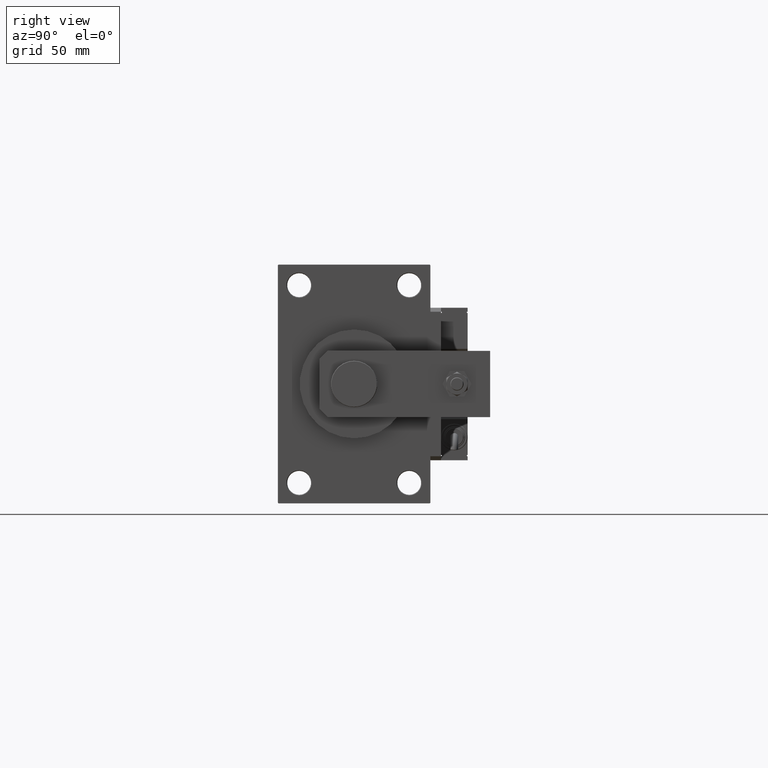
[diagram: clean part render]
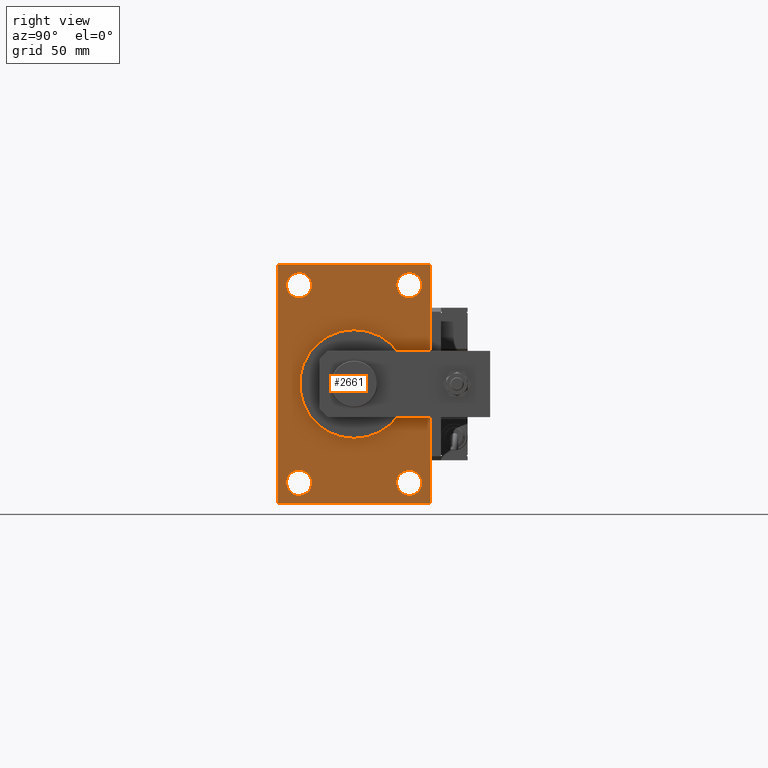
[diagram: same view with one face highlighted and labeled with its STEP entity id]
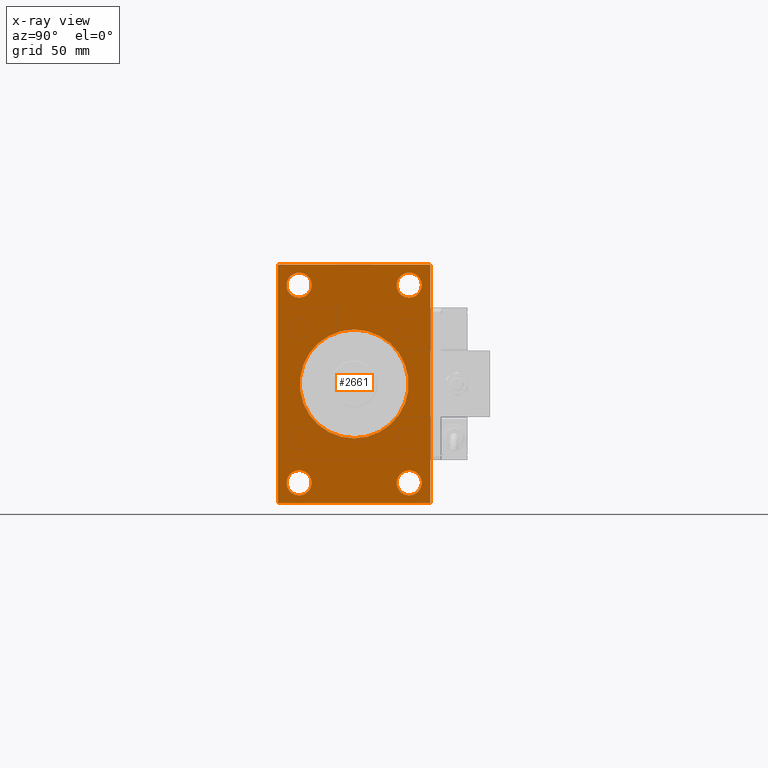
[diagram: x-ray of the same camera — body ghosted, the highlighted face saturated]
A machine part, right view. The second image highlights one B-rep face of the part: STEP entity #2661.
The next image is the same camera in x-ray: the body ghosted, the highlighted face saturated — about 0% of this face is hidden behind the body in this view.
In plain terms, the highlighted planar face has unit normal (-1, 0, 0).
Its self-contained STEP definition (entity closure, byte-faithful):
#140 = DIRECTION ( 'NONE',  ( 0.000000000000000000, 0.000000000000000000, 1.000000000000000000 ) ) ;
#199 = VERTEX_POINT ( 'NONE', #4850 ) ;
#331 = VERTEX_POINT ( 'NONE', #34778 ) ;
#418 = CARTESIAN_POINT ( 'NONE',  ( 388.9999999999999432, 41.49999999999999289, 74.50000000000001421 ) ) ;
#474 = CARTESIAN_POINT ( 'NONE',  ( 388.9999999999999432, 41.49999999999999289, 84.00000000000001421 ) ) ;
#846 = EDGE_CURVE ( 'NONE', #46389, #331, #10606, .T. ) ;
#1109 = CARTESIAN_POINT ( 'NONE',  ( 388.9999999999999432, 0.000000000000000000, 0.000000000000000000 ) ) ;
#1486 = CARTESIAN_POINT ( 'NONE',  ( 388.9999999999999432, 57.00000000000000000, -90.00000000000000000 ) ) ;
#1536 = DIRECTION ( 'NONE',  ( -0.000000000000000000, 0.7071067811865474617, 0.7071067811865474617 ) ) ;
#1542 = CARTESIAN_POINT ( 'NONE',  ( 388.9999999999999432, -57.00000000000000000, 90.00000000000000000 ) ) ;
#1857 = DIRECTION ( 'NONE',  ( -1.000000000000000000, -0.000000000000000000, -0.000000000000000000 ) ) ;
#2202 = ORIENTED_EDGE ( 'NONE', *, *, #33318, .T. ) ;
#2407 = AXIS2_PLACEMENT_3D ( 'NONE', #1109, #50660, #29993 ) ;
#2620 = CARTESIAN_POINT ( 'NONE',  ( 388.9999999999999432, 57.00000000000000000, 90.00000000000000000 ) ) ;
#2661 = ADVANCED_FACE ( 'NONE', ( #11850, #28462, #2842, #19489, #23571, #3661 ), #45053, .F. ) ;
#2842 = FACE_BOUND ( 'NONE', #47970, .T. ) ;
#3608 = ORIENTED_EDGE ( 'NONE', *, *, #27351, .T. ) ;
#3647 = EDGE_CURVE ( 'NONE', #43322, #30559, #13381, .T. ) ;
#3661 = FACE_OUTER_BOUND ( 'NONE', #38057, .T. ) ;
#4400 = EDGE_CURVE ( 'NONE', #21035, #11057, #31653, .T. ) ;
#4830 = CARTESIAN_POINT ( 'NONE',  ( 388.9999999999999432, 57.50000000000000000, -89.50000000000000000 ) ) ;
#4850 = CARTESIAN_POINT ( 'NONE',  ( 388.9999999999999432, -41.50000000000000711, -64.99999999999997158 ) ) ;
#7138 = VECTOR ( 'NONE', #31555, 1000.000000000000114 ) ;
#7201 = VERTEX_POINT ( 'NONE', #50346 ) ;
#8089 = DIRECTION ( 'NONE',  ( -1.000000000000000000, -0.000000000000000000, -0.000000000000000000 ) ) ;
#8119 = AXIS2_PLACEMENT_3D ( 'NONE', #44169, #47979, #39817 ) ;
#8232 = DIRECTION ( 'NONE',  ( 0.000000000000000000, 0.000000000000000000, 1.000000000000000000 ) ) ;
#8407 = ORIENTED_EDGE ( 'NONE', *, *, #16696, .T. ) ;
#8625 = DIRECTION ( 'NONE',  ( -1.000000000000000000, -0.000000000000000000, -0.000000000000000000 ) ) ;
#8885 = CARTESIAN_POINT ( 'NONE',  ( 388.9999999999999432, -41.50000000000000711, -74.49999999999998579 ) ) ;
#8976 = CARTESIAN_POINT ( 'NONE',  ( 388.9999999999999432, 0.000000000000000000, 0.000000000000000000 ) ) ;
#9483 = LINE ( 'NONE', #25822, #22812 ) ;
#10314 = CARTESIAN_POINT ( 'NONE',  ( 388.9999999999999432, 41.49999999999999289, -74.49999999999998579 ) ) ;
#10353 = VERTEX_POINT ( 'NONE', #16147 ) ;
#10453 = DIRECTION ( 'NONE',  ( 0.000000000000000000, -1.000000000000000000, 0.000000000000000000 ) ) ;
#10469 = VERTEX_POINT ( 'NONE', #33565 ) ;
#10606 = LINE ( 'NONE', #35638, #7138 ) ;
#10807 = EDGE_LOOP ( 'NONE', ( #32759, #19586 ) ) ;
#11057 = VERTEX_POINT ( 'NONE', #45833 ) ;
#11438 = CARTESIAN_POINT ( 'NONE',  ( 388.9999999999999432, -57.00000000000000000, -90.00000000000000000 ) ) ;
#11491 = LINE ( 'NONE', #41418, #39357 ) ;
#11498 = EDGE_CURVE ( 'NONE', #11057, #21035, #47620, .T. ) ;
#11518 = ORIENTED_EDGE ( 'NONE', *, *, #44669, .T. ) ;
#11850 = FACE_BOUND ( 'NONE', #39245, .T. ) ;
#12302 = DIRECTION ( 'NONE',  ( 0.000000000000000000, -1.000000000000000000, 0.000000000000000000 ) ) ;
#12976 = DIRECTION ( 'NONE',  ( -1.000000000000000000, -0.000000000000000000, -0.000000000000000000 ) ) ;
#13381 = CIRCLE ( 'NONE', #38586, 9.500000000000008882 ) ;
#14131 = DIRECTION ( 'NONE',  ( 0.000000000000000000, 0.000000000000000000, 1.000000000000000000 ) ) ;
#14713 = VERTEX_POINT ( 'NONE', #1486 ) ;
#14943 = ORIENTED_EDGE ( 'NONE', *, *, #846, .T. ) ;
#15717 = CARTESIAN_POINT ( 'NONE',  ( 388.9999999999999432, -41.50000000000000711, 74.50000000000001421 ) ) ;
#16147 = CARTESIAN_POINT ( 'NONE',  ( 388.9999999999999432, -57.50000000000000000, -89.49999999999994316 ) ) ;
#16248 = CIRCLE ( 'NONE', #31884, 9.500000000000008882 ) ;
#16541 = DIRECTION ( 'NONE',  ( 0.000000000000000000, 0.000000000000000000, 1.000000000000000000 ) ) ;
#16696 = EDGE_CURVE ( 'NONE', #331, #10353, #23092, .T. ) ;
#17140 = DIRECTION ( 'NONE',  ( 0.000000000000000000, 0.000000000000000000, -1.000000000000000000 ) ) ;
#17197 = ORIENTED_EDGE ( 'NONE', *, *, #41228, .T. ) ;
#18845 = VECTOR ( 'NONE', #28243, 1000.000000000000114 ) ;
#19171 = ORIENTED_EDGE ( 'NONE', *, *, #25532, .T. ) ;
#19375 = AXIS2_PLACEMENT_3D ( 'NONE', #49179, #8089, #21160 ) ;
#19489 = FACE_BOUND ( 'NONE', #19769, .T. ) ;
#19586 = ORIENTED_EDGE ( 'NONE', *, *, #33363, .T. ) ;
#19769 = EDGE_LOOP ( 'NONE', ( #17197, #2202 ) ) ;
#20282 = VECTOR ( 'NONE', #26989, 1000.000000000000114 ) ;
#20351 = AXIS2_PLACEMENT_3D ( 'NONE', #15717, #45119, #16541 ) ;
#20369 = VECTOR ( 'NONE', #1536, 1000.000000000000114 ) ;
#20426 = EDGE_CURVE ( 'NONE', #28612, #41488, #9483, .T. ) ;
#20614 = ORIENTED_EDGE ( 'NONE', *, *, #20426, .F. ) ;
#20917 = ORIENTED_EDGE ( 'NONE', *, *, #42767, .T. ) ;
#21035 = VERTEX_POINT ( 'NONE', #53643 ) ;
#21160 = DIRECTION ( 'NONE',  ( 0.000000000000000000, 0.000000000000000000, 1.000000000000000000 ) ) ;
#21204 = ORIENTED_EDGE ( 'NONE', *, *, #3647, .T. ) ;
#21912 = EDGE_LOOP ( 'NONE', ( #27116, #24818 ) ) ;
#22379 = EDGE_CURVE ( 'NONE', #7201, #199, #37514, .T. ) ;
#22812 = VECTOR ( 'NONE', #42412, 1000.000000000000000 ) ;
#23084 = ORIENTED_EDGE ( 'NONE', *, *, #52261, .T. ) ;
#23092 = LINE ( 'NONE', #34544, #27004 ) ;
#23349 = LINE ( 'NONE', #2620, #18845 ) ;
#23571 = FACE_BOUND ( 'NONE', #21912, .T. ) ;
#24565 = DIRECTION ( 'NONE',  ( -1.000000000000000000, -0.000000000000000000, -0.000000000000000000 ) ) ;
#24818 = ORIENTED_EDGE ( 'NONE', *, *, #4400, .F. ) ;
#25532 = EDGE_CURVE ( 'NONE', #33029, #32771, #34190, .T. ) ;
#25808 = CARTESIAN_POINT ( 'NONE',  ( 388.9999999999999432, 41.49999999999999289, -74.49999999999998579 ) ) ;
#25822 = CARTESIAN_POINT ( 'NONE',  ( 388.9999999999999432, 57.50000000000000000, 90.00000000000000000 ) ) ;
#25824 = EDGE_CURVE ( 'NONE', #10353, #32958, #52007, .T. ) ;
#26540 = LINE ( 'NONE', #34955, #29007 ) ;
#26836 = CARTESIAN_POINT ( 'NONE',  ( 388.9999999999999432, 57.50000000000000000, 89.50000000000000000 ) ) ;
#26989 = DIRECTION ( 'NONE',  ( 0.000000000000000000, 0.7071067811865474617, -0.7071067811865474617 ) ) ;
#27004 = VECTOR ( 'NONE', #34805, 1000.000000000000000 ) ;
#27116 = ORIENTED_EDGE ( 'NONE', *, *, #11498, .F. ) ;
#27351 = EDGE_CURVE ( 'NONE', #14713, #41488, #42131, .T. ) ;
#27853 = CARTESIAN_POINT ( 'NONE',  ( 388.9999999999999432, 41.49999999999999289, -64.99999999999997158 ) ) ;
#28243 = DIRECTION ( 'NONE',  ( 0.000000000000000000, -0.7071067811865474617, 0.7071067811865474617 ) ) ;
#28462 = FACE_BOUND ( 'NONE', #10807, .T. ) ;
#28612 = VERTEX_POINT ( 'NONE', #26836 ) ;
#28627 = AXIS2_PLACEMENT_3D ( 'NONE', #418, #8625, #34196 ) ;
#28737 = DIRECTION ( 'NONE',  ( -0.000000000000000000, 0.000000000000000000, 1.000000000000000000 ) ) ;
#29007 = VECTOR ( 'NONE', #10453, 1000.000000000000000 ) ;
#29229 = ORIENTED_EDGE ( 'NONE', *, *, #31080, .T. ) ;
#29374 = CARTESIAN_POINT ( 'NONE',  ( 388.9999999999999432, -57.00000000000000000, -90.00000000000000000 ) ) ;
#29827 = AXIS2_PLACEMENT_3D ( 'NONE', #45506, #24565, #8232 ) ;
#29993 = DIRECTION ( 'NONE',  ( 0.000000000000000000, 0.000000000000000000, -1.000000000000000000 ) ) ;
#30559 = VERTEX_POINT ( 'NONE', #27853 ) ;
#31080 = EDGE_CURVE ( 'NONE', #30559, #43322, #16248, .T. ) ;
#31555 = DIRECTION ( 'NONE',  ( -0.000000000000000000, -0.7071067811865474617, -0.7071067811865474617 ) ) ;
#31653 = CIRCLE ( 'NONE', #47273, 41.00000000000000000 ) ;
#31754 = CARTESIAN_POINT ( 'NONE',  ( 388.9999999999999432, -41.50000000000000711, 84.00000000000001421 ) ) ;
#31884 = AXIS2_PLACEMENT_3D ( 'NONE', #10314, #1857, #14131 ) ;
#32759 = ORIENTED_EDGE ( 'NONE', *, *, #22379, .T. ) ;
#32771 = VERTEX_POINT ( 'NONE', #50981 ) ;
#32891 = ORIENTED_EDGE ( 'NONE', *, *, #25824, .T. ) ;
#32958 = VERTEX_POINT ( 'NONE', #29374 ) ;
#33029 = VERTEX_POINT ( 'NONE', #31754 ) ;
#33318 = EDGE_CURVE ( 'NONE', #49283, #10469, #34719, .T. ) ;
#33363 = EDGE_CURVE ( 'NONE', #199, #7201, #53826, .T. ) ;
#33565 = CARTESIAN_POINT ( 'NONE',  ( 388.9999999999999432, 41.49999999999999289, 65.00000000000000000 ) ) ;
#34190 = CIRCLE ( 'NONE', #8119, 9.500000000000008882 ) ;
#34196 = DIRECTION ( 'NONE',  ( 0.000000000000000000, 0.000000000000000000, 1.000000000000000000 ) ) ;
#34207 = CARTESIAN_POINT ( 'NONE',  ( 388.9999999999999432, 57.50000000000000000, -89.49999999999994316 ) ) ;
#34284 = DIRECTION ( 'NONE',  ( 1.000000000000000000, 0.000000000000000000, 0.000000000000000000 ) ) ;
#34544 = CARTESIAN_POINT ( 'NONE',  ( 388.9999999999999432, -57.50000000000000000, 90.00000000000000000 ) ) ;
#34719 = CIRCLE ( 'NONE', #28627, 9.500000000000008882 ) ;
#34778 = CARTESIAN_POINT ( 'NONE',  ( 388.9999999999999432, -57.50000000000000000, 89.50000000000000000 ) ) ;
#34805 = DIRECTION ( 'NONE',  ( 0.000000000000000000, 0.000000000000000000, -1.000000000000000000 ) ) ;
#34955 = CARTESIAN_POINT ( 'NONE',  ( 388.9999999999999432, 57.50000000000000000, 90.00000000000000000 ) ) ;
#35638 = CARTESIAN_POINT ( 'NONE',  ( 388.9999999999999432, -57.50000000000000000, 89.50000000000000000 ) ) ;
#36453 = AXIS2_PLACEMENT_3D ( 'NONE', #8885, #12976, #140 ) ;
#37297 = CARTESIAN_POINT ( 'NONE',  ( 388.9999999999999432, 57.00000000000000000, 90.00000000000000000 ) ) ;
#37483 = CARTESIAN_POINT ( 'NONE',  ( 388.9999999999999432, 41.49999999999999289, -83.99999999999998579 ) ) ;
#37514 = CIRCLE ( 'NONE', #19375, 9.500000000000008882 ) ;
#38057 = EDGE_LOOP ( 'NONE', ( #8407, #32891, #49474, #3608, #20614, #23084, #11518, #14943 ) ) ;
#38307 = DIRECTION ( 'NONE',  ( -1.000000000000000000, -0.000000000000000000, -0.000000000000000000 ) ) ;
#38586 = AXIS2_PLACEMENT_3D ( 'NONE', #25808, #38307, #47006 ) ;
#39245 = EDGE_LOOP ( 'NONE', ( #20917, #19171 ) ) ;
#39357 = VECTOR ( 'NONE', #12302, 1000.000000000000000 ) ;
#39817 = DIRECTION ( 'NONE',  ( 0.000000000000000000, 0.000000000000000000, 1.000000000000000000 ) ) ;
#40149 = CARTESIAN_POINT ( 'NONE',  ( 388.9999999999999432, 0.000000000000000000, 0.000000000000000000 ) ) ;
#41150 = EDGE_CURVE ( 'NONE', #14713, #32958, #11491, .T. ) ;
#41228 = EDGE_CURVE ( 'NONE', #10469, #49283, #42874, .T. ) ;
#41418 = CARTESIAN_POINT ( 'NONE',  ( 388.9999999999999432, 57.50000000000000000, -90.00000000000000000 ) ) ;
#41488 = VERTEX_POINT ( 'NONE', #34207 ) ;
#42131 = LINE ( 'NONE', #4830, #20369 ) ;
#42412 = DIRECTION ( 'NONE',  ( 0.000000000000000000, 0.000000000000000000, -1.000000000000000000 ) ) ;
#42767 = EDGE_CURVE ( 'NONE', #32771, #33029, #48135, .T. ) ;
#42874 = CIRCLE ( 'NONE', #29827, 9.500000000000008882 ) ;
#43322 = VERTEX_POINT ( 'NONE', #37483 ) ;
#43734 = AXIS2_PLACEMENT_3D ( 'NONE', #40149, #44240, #28737 ) ;
#44169 = CARTESIAN_POINT ( 'NONE',  ( 388.9999999999999432, -41.50000000000000711, 74.50000000000001421 ) ) ;
#44240 = DIRECTION ( 'NONE',  ( -1.000000000000000000, 0.000000000000000000, -0.000000000000000000 ) ) ;
#44669 = EDGE_CURVE ( 'NONE', #48815, #46389, #26540, .T. ) ;
#45053 = PLANE ( 'NONE',  #43734 ) ;
#45119 = DIRECTION ( 'NONE',  ( -1.000000000000000000, -0.000000000000000000, -0.000000000000000000 ) ) ;
#45506 = CARTESIAN_POINT ( 'NONE',  ( 388.9999999999999432, 41.49999999999999289, 74.50000000000001421 ) ) ;
#45833 = CARTESIAN_POINT ( 'NONE',  ( 388.9999999999999432, 0.000000000000000000, 41.00000000000000000 ) ) ;
#46389 = VERTEX_POINT ( 'NONE', #1542 ) ;
#47006 = DIRECTION ( 'NONE',  ( 0.000000000000000000, 0.000000000000000000, 1.000000000000000000 ) ) ;
#47273 = AXIS2_PLACEMENT_3D ( 'NONE', #8976, #34284, #17140 ) ;
#47620 = CIRCLE ( 'NONE', #2407, 41.00000000000000000 ) ;
#47970 = EDGE_LOOP ( 'NONE', ( #21204, #29229 ) ) ;
#47979 = DIRECTION ( 'NONE',  ( -1.000000000000000000, -0.000000000000000000, -0.000000000000000000 ) ) ;
#48135 = CIRCLE ( 'NONE', #20351, 9.500000000000008882 ) ;
#48815 = VERTEX_POINT ( 'NONE', #37297 ) ;
#49179 = CARTESIAN_POINT ( 'NONE',  ( 388.9999999999999432, -41.50000000000000711, -74.49999999999998579 ) ) ;
#49283 = VERTEX_POINT ( 'NONE', #474 ) ;
#49474 = ORIENTED_EDGE ( 'NONE', *, *, #41150, .F. ) ;
#50346 = CARTESIAN_POINT ( 'NONE',  ( 388.9999999999999432, -41.50000000000000711, -83.99999999999998579 ) ) ;
#50660 = DIRECTION ( 'NONE',  ( 1.000000000000000000, 0.000000000000000000, 0.000000000000000000 ) ) ;
#50981 = CARTESIAN_POINT ( 'NONE',  ( 388.9999999999999432, -41.50000000000000711, 65.00000000000000000 ) ) ;
#52007 = LINE ( 'NONE', #11438, #20282 ) ;
#52261 = EDGE_CURVE ( 'NONE', #28612, #48815, #23349, .T. ) ;
#53643 = CARTESIAN_POINT ( 'NONE',  ( 388.9999999999999432, 5.021051876504148963E-15, -41.00000000000000000 ) ) ;
#53826 = CIRCLE ( 'NONE', #36453, 9.500000000000008882 ) ;